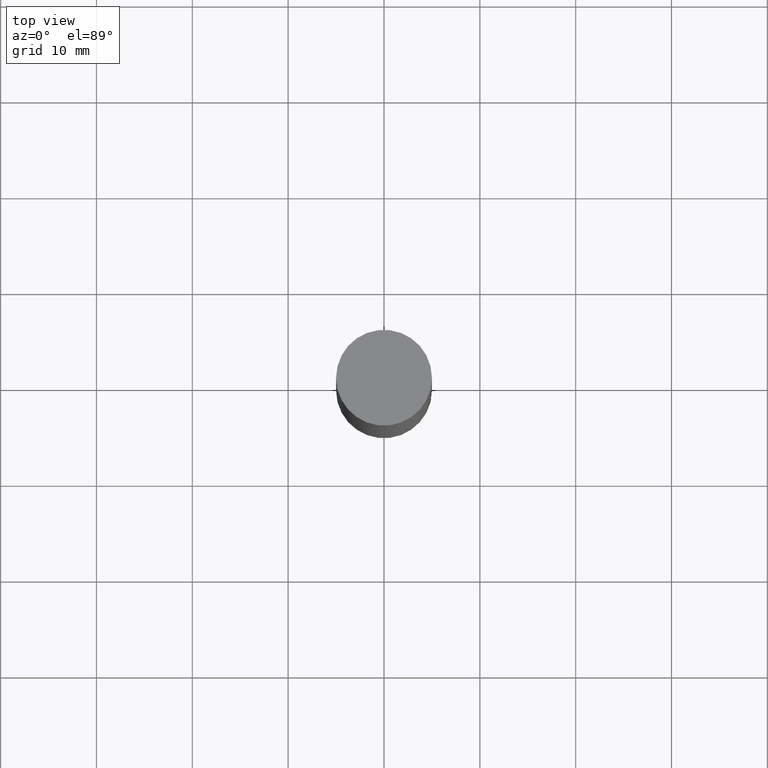
[diagram: clean part render]
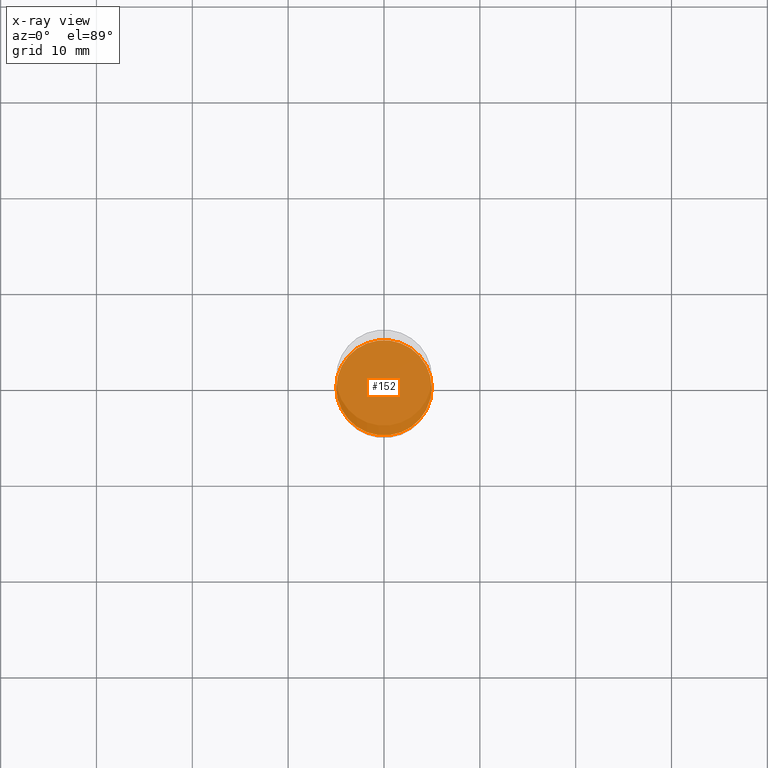
[diagram: x-ray — body ghosted, one internal face saturated and labeled with its STEP entity id]
A machine part, top view, then the same camera in x-ray: the body is ghosted and one INTERNAL B-rep face — a face not visible from any outside direction — is saturated and labeled: STEP entity #152.
In plain terms, the highlighted planar face has unit normal (-0, 0, 1).
Its self-contained STEP definition (entity closure, byte-faithful):
#24 = CIRCLE ( 'NONE', #378, 0.1958499999999999963 ) ;
#67 = CARTESIAN_POINT ( 'NONE',  ( 5.873037884934223228E-29, -8.385141583365697263E-15, -2.401599999999999735 ) ) ;
#71 = DIRECTION ( 'NONE',  ( -2.438088387897960049E-29, 3.491481338843145188E-15, 1.000000000000000000 ) ) ;
#81 = DIRECTION ( 'NONE',  ( -2.445468806185136597E-29, 3.491481338843145583E-15, 1.000000000000000000 ) ) ;
#91 = CARTESIAN_POINT ( 'NONE',  ( 5.873037884934223228E-29, -8.385141583365697263E-15, -2.401599999999999735 ) ) ;
#141 = DIRECTION ( 'NONE',  ( 1.000000000000000000, -6.982962677686262766E-15, 0.000000000000000000 ) ) ;
#152 = ADVANCED_FACE ( 'NONE', ( #642 ), #592, .F. ) ;
#160 = EDGE_CURVE ( 'NONE', #335, #622, #24, .T. ) ;
#265 = ORIENTED_EDGE ( 'NONE', *, *, #304, .F. ) ;
#301 = CIRCLE ( 'NONE', #653, 0.1958499999999999963 ) ;
#304 = EDGE_CURVE ( 'NONE', #622, #335, #301, .T. ) ;
#334 = DIRECTION ( 'NONE',  ( -2.445468806185136597E-29, 3.491481338843145583E-15, 1.000000000000000000 ) ) ;
#335 = VERTEX_POINT ( 'NONE', #501 ) ;
#378 = AXIS2_PLACEMENT_3D ( 'NONE', #391, #334, #542 ) ;
#391 = CARTESIAN_POINT ( 'NONE',  ( 5.873037884934223228E-29, -8.385141583365697263E-15, -2.401599999999999735 ) ) ;
#395 = AXIS2_PLACEMENT_3D ( 'NONE', #67, #71, #396 ) ;
#396 = DIRECTION ( 'NONE',  ( 1.000000000000000000, -6.982962677686265922E-15, 4.876176775795935793E-29 ) ) ;
#478 = EDGE_LOOP ( 'NONE', ( #579, #265 ) ) ;
#493 = CARTESIAN_POINT ( 'NONE',  ( -0.1958499999999999963, -6.988245181031318870E-15, -2.401599999999999735 ) ) ;
#501 = CARTESIAN_POINT ( 'NONE',  ( 0.1958499999999999963, -9.752754823790552857E-15, -2.401599999999999735 ) ) ;
#542 = DIRECTION ( 'NONE',  ( 1.000000000000000000, -6.982962677686262766E-15, 0.000000000000000000 ) ) ;
#579 = ORIENTED_EDGE ( 'NONE', *, *, #160, .F. ) ;
#592 = PLANE ( 'NONE',  #395 ) ;
#622 = VERTEX_POINT ( 'NONE', #493 ) ;
#642 = FACE_OUTER_BOUND ( 'NONE', #478, .T. ) ;
#653 = AXIS2_PLACEMENT_3D ( 'NONE', #91, #81, #141 ) ;